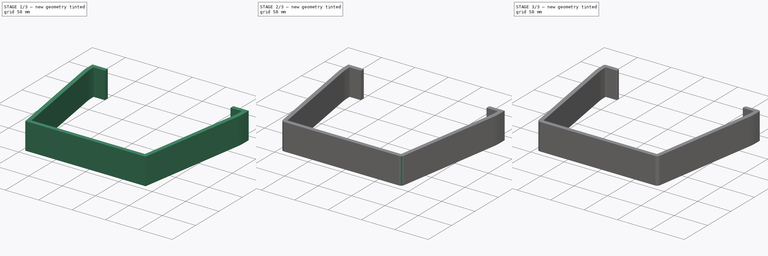
[diagram: build sequence overview — one tinted view per stage of 3, left to right]
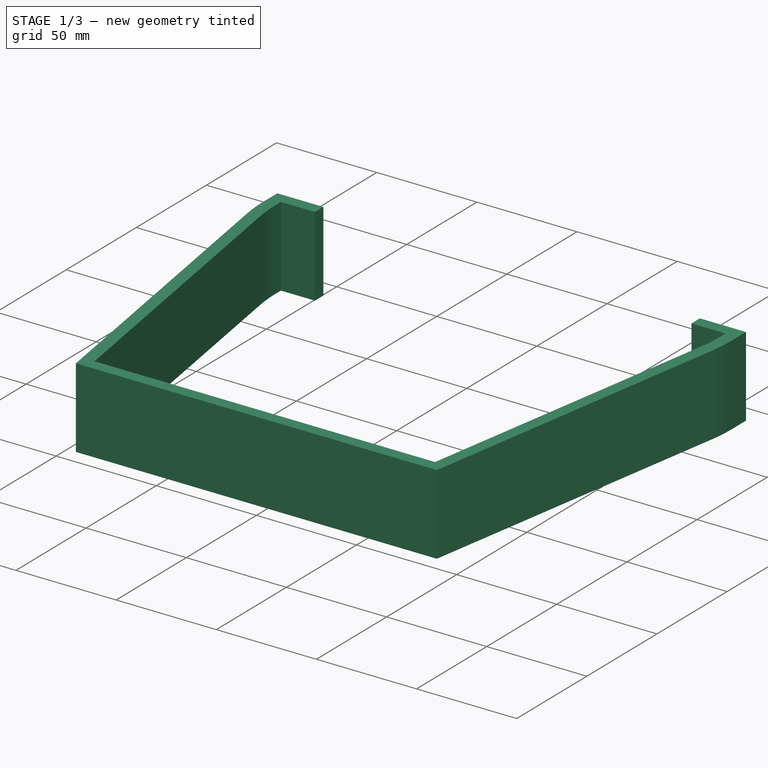
[diagram: stage 1 of 3 — iso view after this stage's code; geometry added in this stage tinted green]
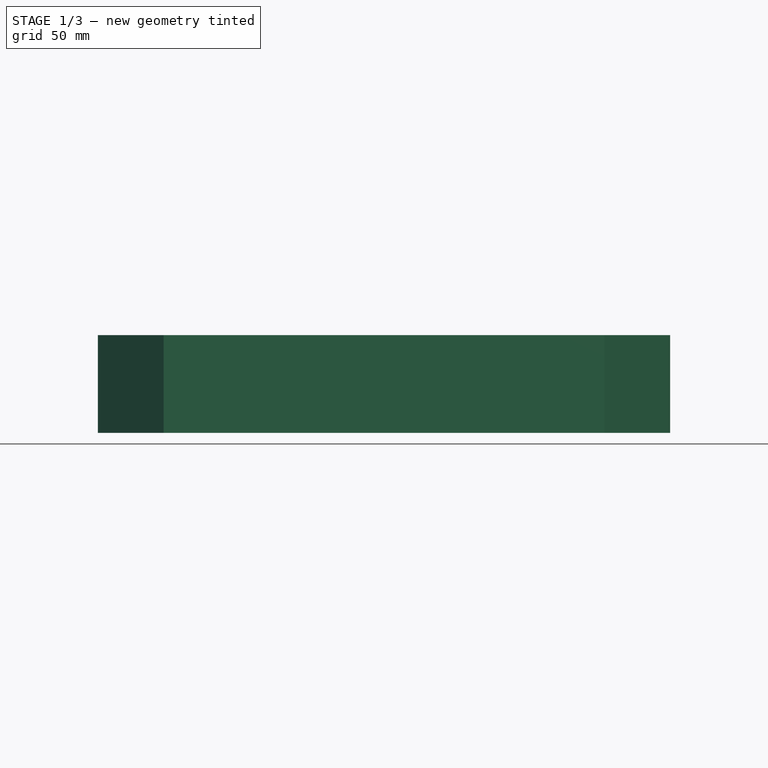
[diagram: stage 1 of 3 — front view after this stage's code; geometry added in this stage tinted green]
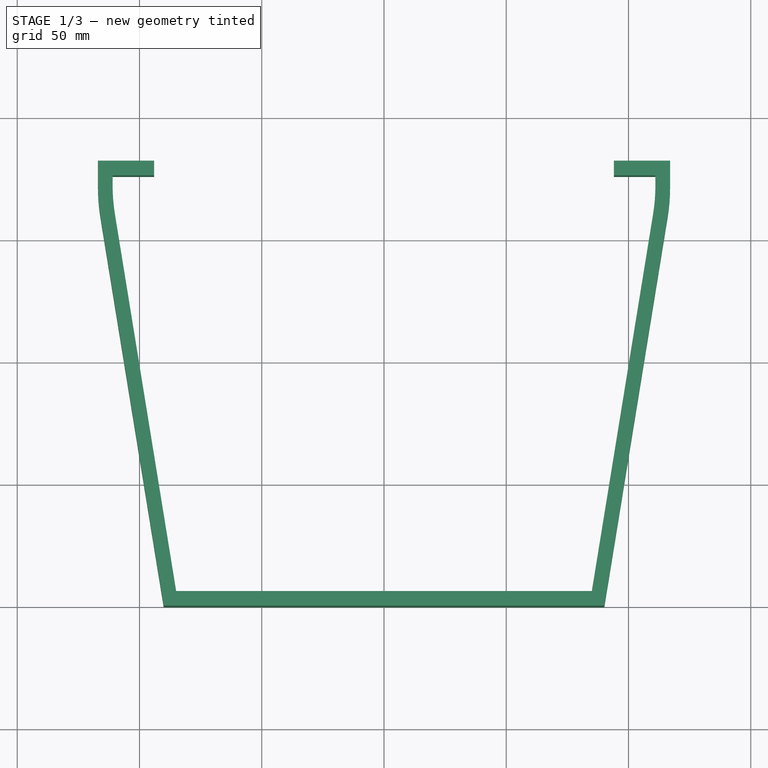
[diagram: stage 1 of 3 — top view after this stage's code; geometry added in this stage tinted green]
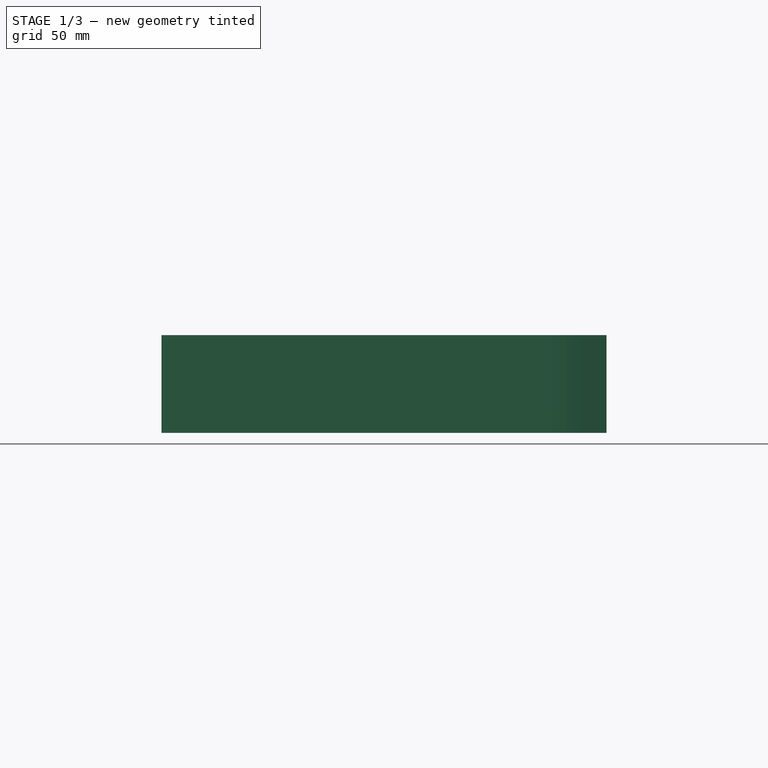
[diagram: stage 1 of 3 — right view after this stage's code; geometry added in this stage tinted green]
FCSTD DOCUMENT  (FreeCAD 0.19R22960 (Git))
Label: hanging shelf
License: All rights reserved
LicenseURL: http://en.wikipedia.org/wiki/All_rights_reserved
objects: PartDesign::Fillet×5, Sketcher::SketchObject×1, PartDesign::Pad×1, PartDesign::Body×1
note: 14 computed .brp shape members not serialized (recipe doc carries the construction recipe); baked Part::Feature solids carry a one-line shape summary decoded from their .brp

FEATURE [Sketcher::SketchObject] Sketch
  MapMode = 5
  Support = -> [XY_Plane]
  sketch-geometry (20):
    g0: LineSegment StartX=-94 StartY=182 StartZ=0 EndX=-117 EndY=182 EndZ=0
    g1: LineSegment StartX=-117 StartY=182 StartZ=0 EndX=-117 EndY=165.516 EndZ=0
    g2: LineSegment StartX=-117 StartY=165.516 StartZ=0 EndX=-90.1037 EndY=0 EndZ=0
    g3: LineSegment StartX=-90.1037 StartY=0 StartZ=0 EndX=90.1037 EndY=0 EndZ=0
    g4: LineSegment StartX=90.1037 StartY=0 StartZ=0 EndX=117 EndY=165.516 EndZ=0
    g5: LineSegment StartX=117 StartY=165.516 StartZ=0 EndX=117 EndY=182 EndZ=0
    g6: LineSegment StartX=117 StartY=182 StartZ=0 EndX=94 EndY=182 EndZ=0
    g7: LineSegment StartX=94 StartY=182 StartZ=0 EndX=94 EndY=176 EndZ=0
    g8: LineSegment StartX=94 StartY=176 StartZ=0 EndX=111 EndY=176 EndZ=0
    g9: LineSegment StartX=111 StartY=176 StartZ=0 EndX=111 EndY=166 EndZ=0
    g10: LineSegment StartX=111 StartY=166 StartZ=0 EndX=85 EndY=6 EndZ=0
    g11: LineSegment StartX=85 StartY=6 StartZ=0 EndX=-85 EndY=6 EndZ=0
    g12: LineSegment StartX=-85 StartY=6 StartZ=0 EndX=-111 EndY=166 EndZ=0
    g13: LineSegment StartX=-111 StartY=166 StartZ=0 EndX=-111 EndY=176 EndZ=0
    g14: LineSegment StartX=-111 StartY=176 StartZ=0 EndX=-94 EndY=176 EndZ=0
    g15: LineSegment StartX=-94 StartY=176 StartZ=0 EndX=-94 EndY=182 EndZ=0
    g16: LineSegment [constr] StartX=-111 StartY=182 StartZ=0 EndX=-111 EndY=176 EndZ=0
    g17: LineSegment [constr] StartX=-117 StartY=176 StartZ=0 EndX=-111 EndY=176 EndZ=0
    g18: LineSegment [constr] StartX=-85 StartY=0 StartZ=0 EndX=-85 EndY=6 EndZ=0
    g19: LineSegment [constr] StartX=-90.9223 StartY=5.03762 StartZ=0 EndX=-85 EndY=6 EndZ=0
  constraints (51):
    c: Horizontal(g0)
    c: Coincident(g0,g1)
    c: Vertical(g1)
    c: Coincident(g1,g2)
    c: PointOnObject(g2,g-1)
    c: Coincident(g2,g3)
    c: Coincident(g3,g4)
    c: Coincident(g4,g5)
    c: Coincident(g5,g6)
    c: Coincident(g6,g7)
    c: Coincident(g7,g8)
    c: Horizontal(g8)
    c: Coincident(g8,g9)
    c: Coincident(g9,g10)
    c: Coincident(g10,g11)
    c: Coincident(g11,g12)
    c: Coincident(g12,g13)
    c: Vertical(g13)
    c: Coincident(g13,g14)
    c: Coincident(g14,g15)
    c: Coincident(g15,g0)
    c: Vertical(g15)
    c: Symmetric(g0,g6,g-2)
    c: Symmetric(g0,g5,g-2)
    c: Symmetric(g13,g8,g-2)
    c: Symmetric(g7,g14,g-2)
    c: Symmetric(g9,g12,g-2)
    c: Symmetric(g1,g4,g-2)
    c: Symmetric(g11,g10,g-2)
    c: Symmetric(g2,g3,g-2)
    c: DistanceX(g12,g9) = 222
    c: DistanceY(g10,g7) = 170
    c: DistanceX(g8,g8) = 17
    c: PointOnObject(g16,g0)
    c: Vertical(g16)
    c: PointOnObject(g17,g1)
    c: Horizontal(g17)
    c: PointOnObject(g18,g3)
    c: Vertical(g18)
    c: Perpendicular(g19,g2) = 4.71239
    c: Perpendicular(g12,g19)
    c: Equal(g16,g17)
    c: Equal(g17,g19)
    c: Equal(g19,g18)
    c: Coincident(g11,g18)
    c: Coincident(g11,g19)
    c: Coincident(g17,g13)
    c: Coincident(g17,g16)
    c: DistanceY(g16,g16) = 6
    c: DistanceY(g9,g9) = 10
    c: DistanceX(g11,g11) = 170
FEATURE [PartDesign::Pad] Pad
  Direction = (1,1,1)
  Length = 40
  Length2 = 100
  Profile = -> Sketch
  Refine = true
  Type = 0
FEATURE [PartDesign::Fillet] Fillet
  Base = -> Pad [Edge14,Edge5,Edge29,Edge38]
  BaseFeature = -> Pad
  Radius = 75
  Refine = true
  SupportTransform = false
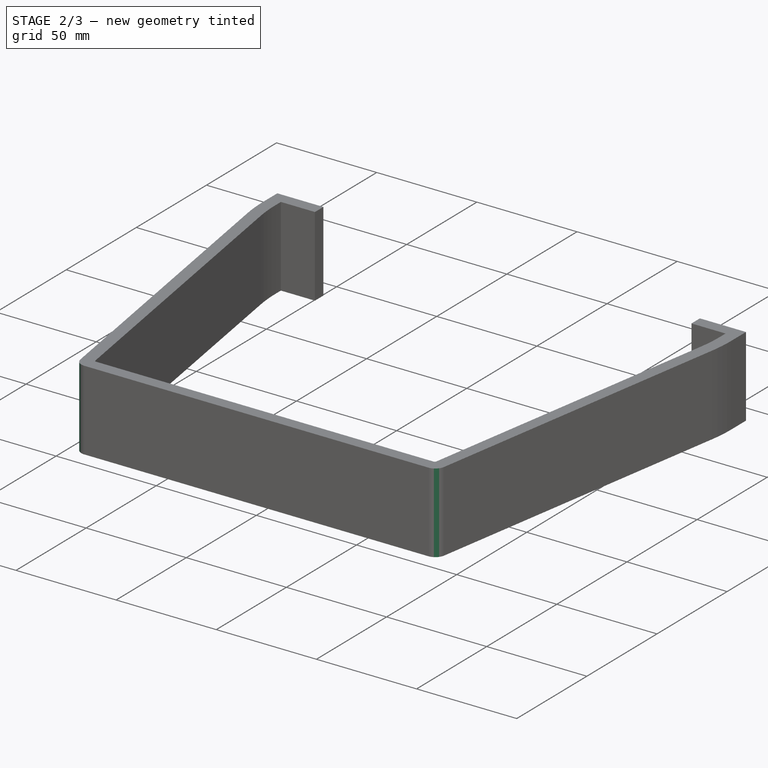
[diagram: stage 2 of 3 — iso view after this stage's code; geometry added in this stage tinted green]
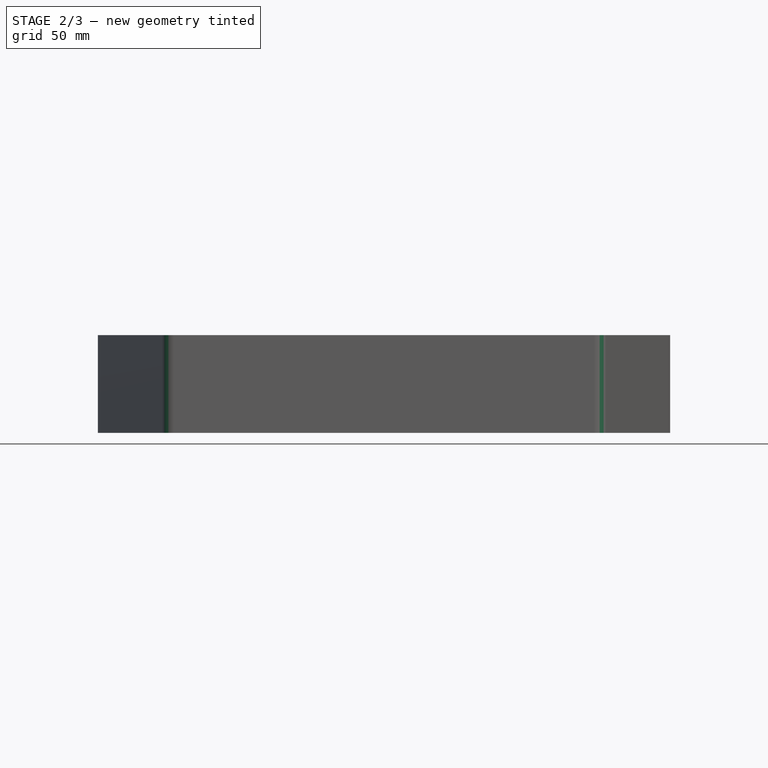
[diagram: stage 2 of 3 — front view after this stage's code; geometry added in this stage tinted green]
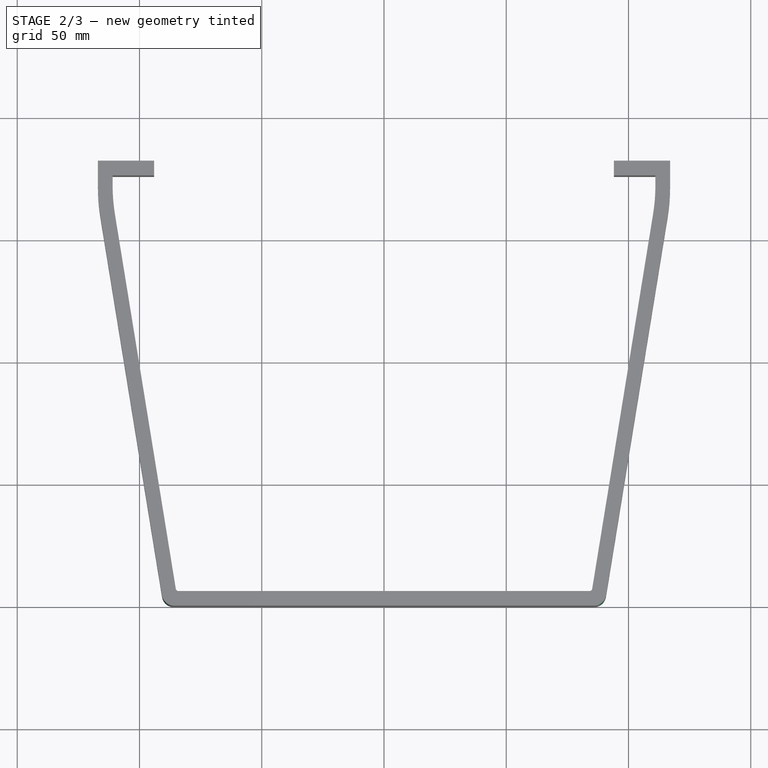
[diagram: stage 2 of 3 — top view after this stage's code; geometry added in this stage tinted green]
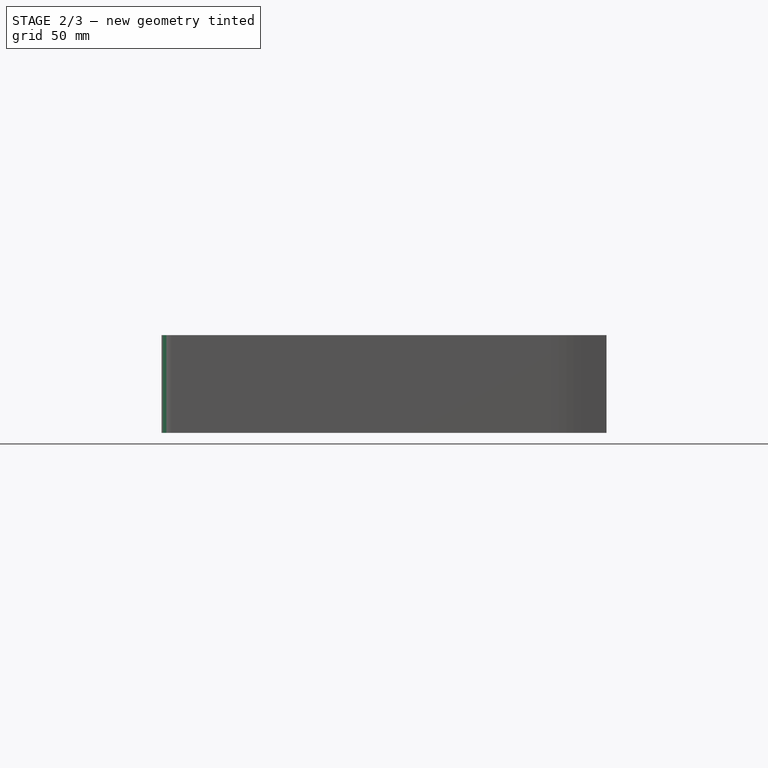
[diagram: stage 2 of 3 — right view after this stage's code; geometry added in this stage tinted green]
FEATURE [PartDesign::Fillet] Fillet001
  Base = -> Fillet [Edge45,Edge47]
  BaseFeature = -> Fillet
  Radius = 5
  Refine = true
  SupportTransform = false
FEATURE [PartDesign::Fillet] Fillet002
  Base = -> Fillet001 [Edge60,Edge56]
  BaseFeature = -> Fillet001
  Radius = 1
  Refine = true
  SupportTransform = false
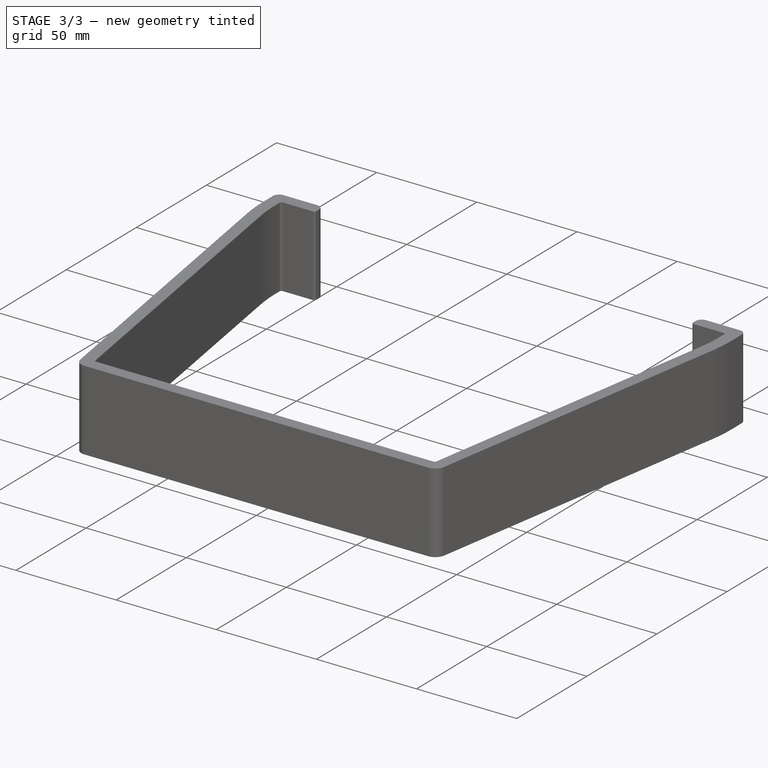
[diagram: stage 3 of 3 — iso view after this stage's code; geometry added in this stage tinted green]
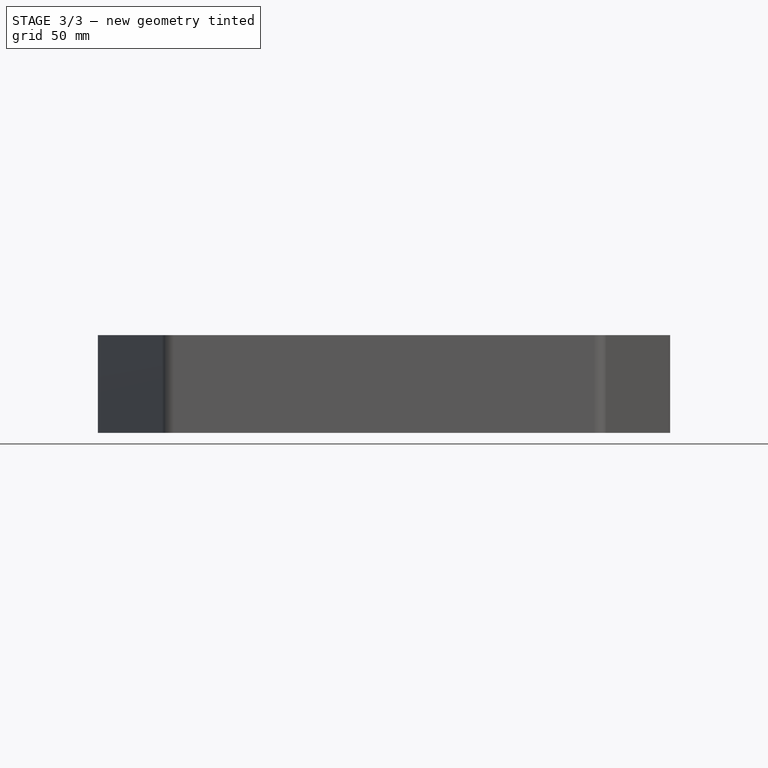
[diagram: stage 3 of 3 — front view after this stage's code; geometry added in this stage tinted green]
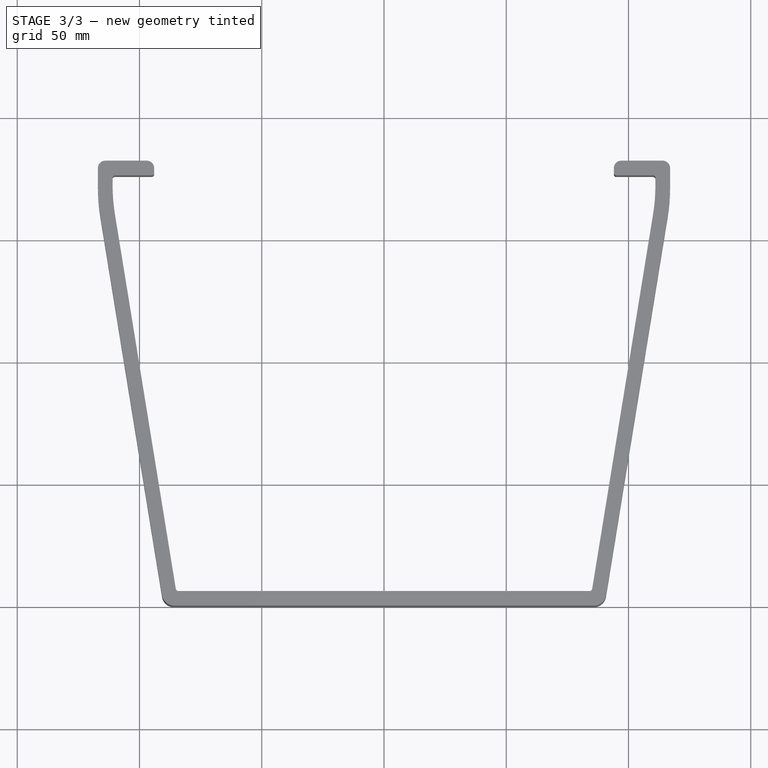
[diagram: stage 3 of 3 — top view after this stage's code; geometry added in this stage tinted green]
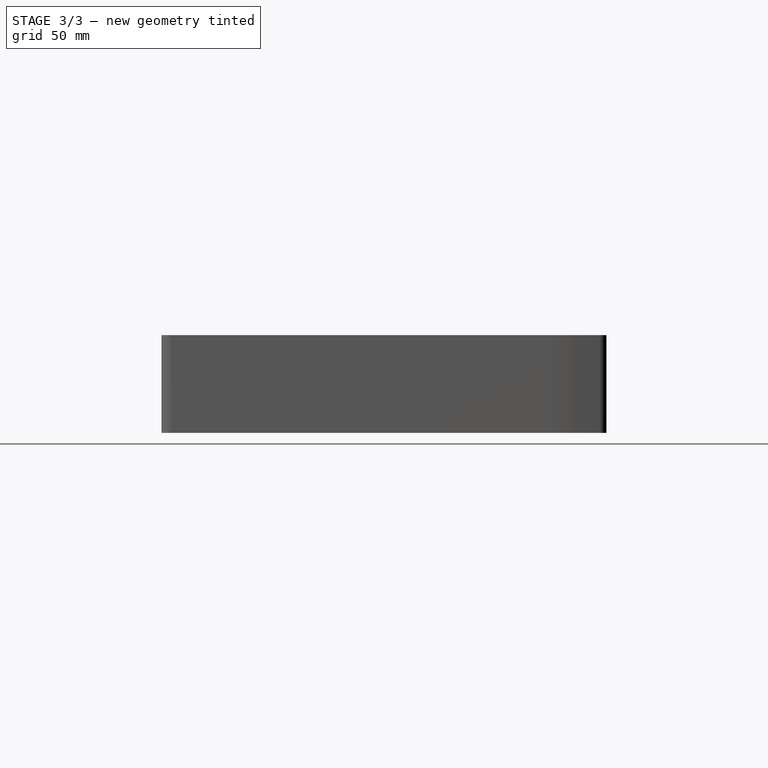
[diagram: stage 3 of 3 — right view after this stage's code; geometry added in this stage tinted green]
FEATURE [PartDesign::Fillet] Fillet003
  Base = -> Fillet002 [Edge60,Edge46,Edge42,Edge56]
  BaseFeature = -> Fillet002
  Radius = 3
  Refine = true
  SupportTransform = false
FEATURE [PartDesign::Fillet] Fillet004
  Base = -> Fillet003 [Edge30,Edge34,Edge70,Edge74]
  BaseFeature = -> Fillet003
  Radius = 1
  Refine = true
  SupportTransform = false
FEATURE [PartDesign::Body] Body
  Group = -> [Sketch,Pad,Fillet,Fillet001,Fillet002,Fillet003,Fillet004]
  Origin = -> Origin
  Tip = -> Fillet004
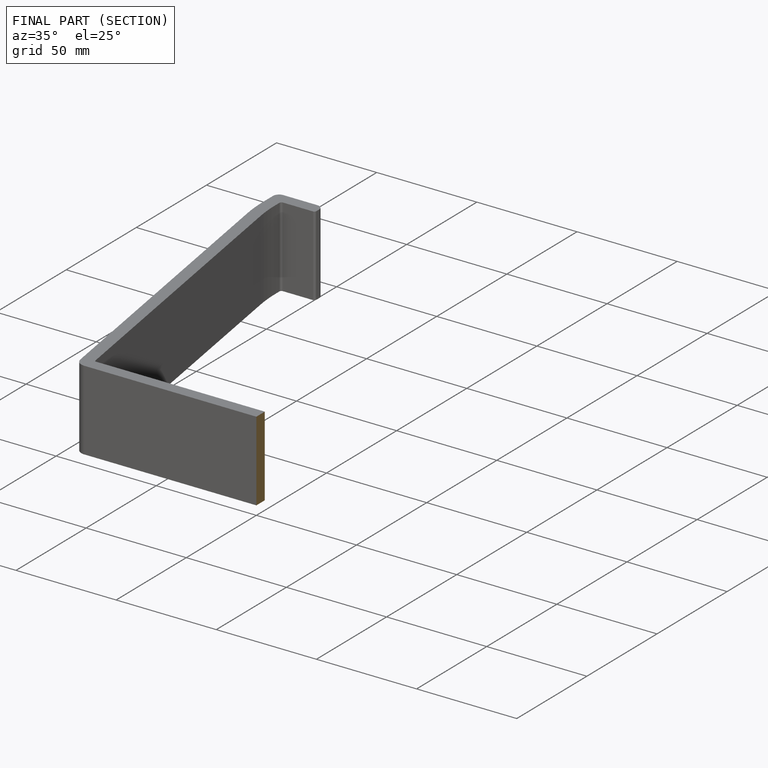
[diagram: finished part — half-section view (interior)]
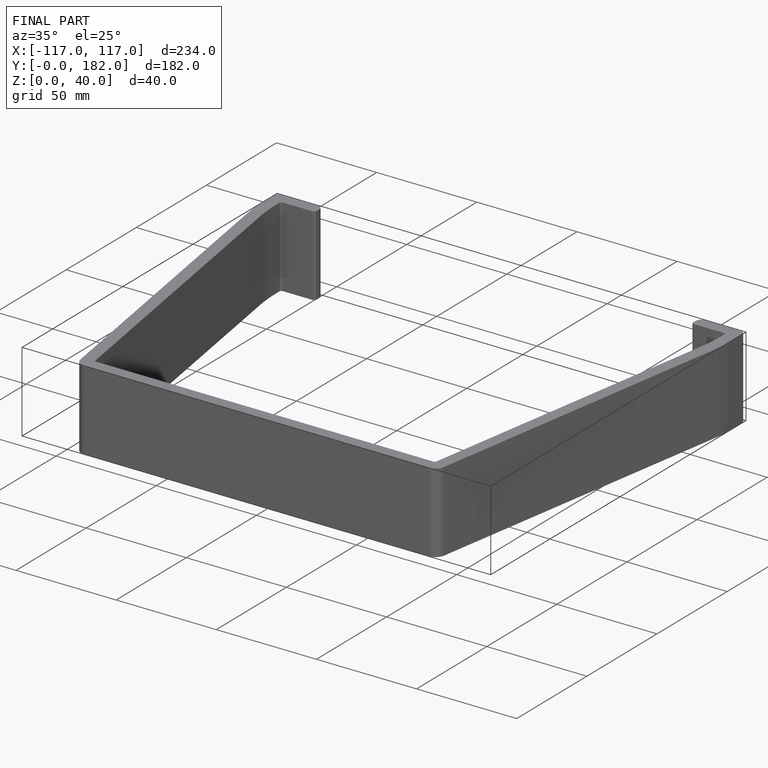
[diagram: finished part — iso view with bounding-box wireframe]
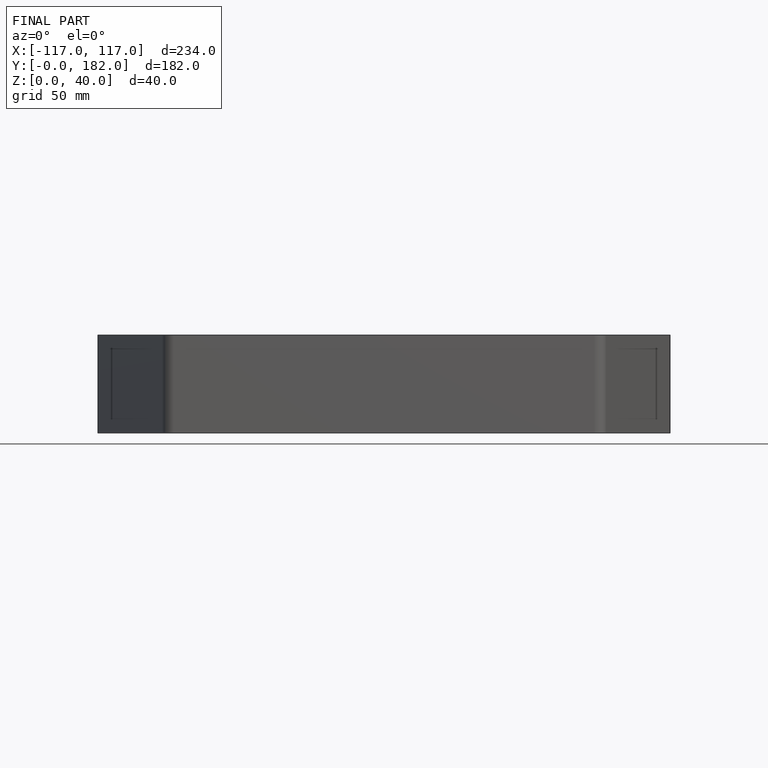
[diagram: finished part — front view with bounding-box wireframe]
